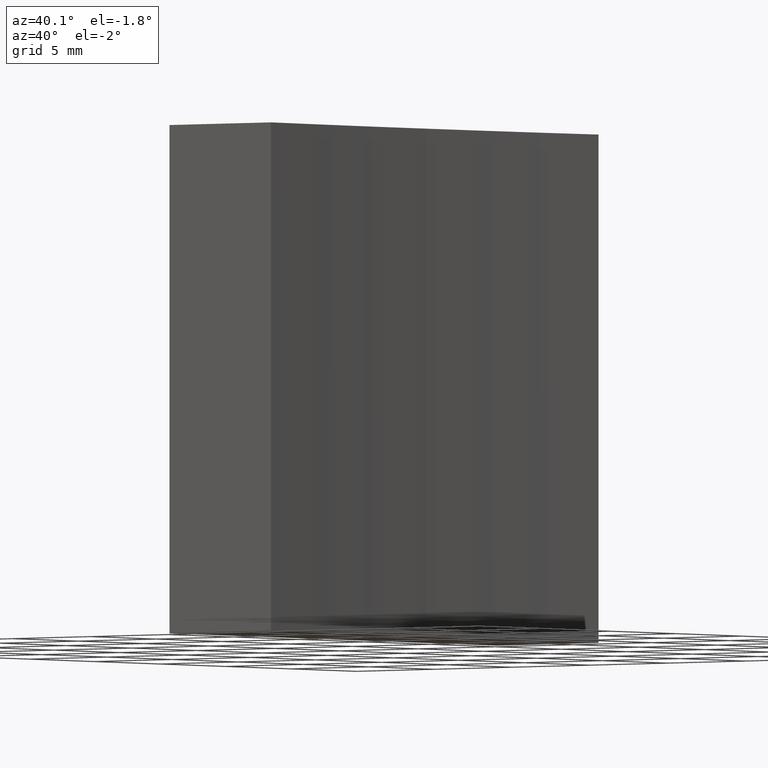
[diagram: clean part render]
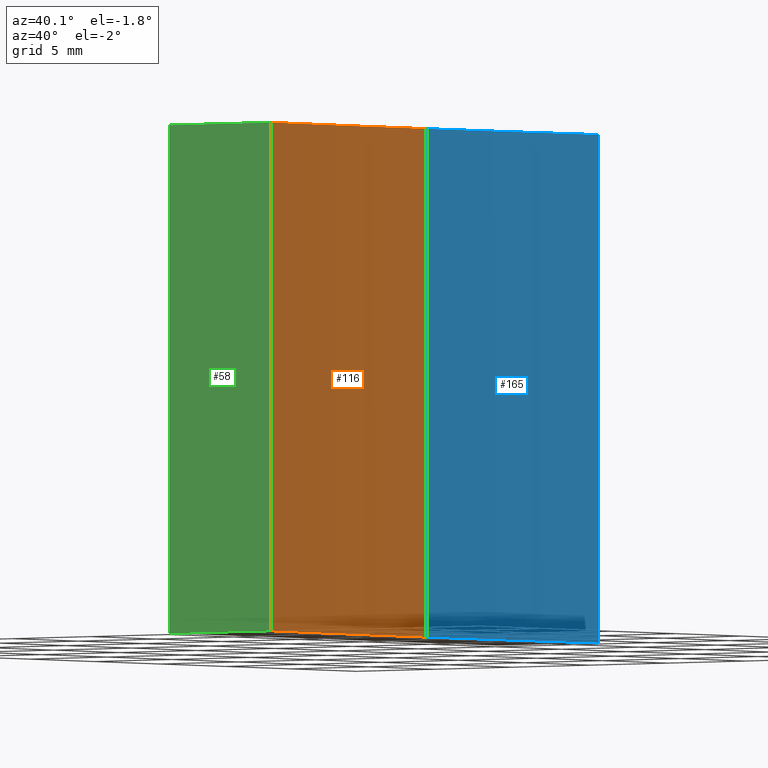
[diagram: same view with three faces highlighted in distinct colors, each labeled with its STEP entity id]
A machine part, auxiliary view with three faces highlighted in distinct colors.
Their STEP definitions:

[orange] entity #116 — the highlighted cylindrical surface (partial cylindrical patch) has radius 150 mm, axis along (-0, -0, -1).
#6 = EDGE_CURVE ( 'NONE', #19, #80, #148, .T. ) ;
#7 = CARTESIAN_POINT ( 'NONE',  ( 121.0926557596387600, 69.37802112337249100, 25.00000000000000000 ) ) ;
#9 = ORIENTED_EDGE ( 'NONE', *, *, #218, .T. ) ;
#19 = VERTEX_POINT ( 'NONE', #204 ) ;
#22 = DIRECTION ( 'NONE',  ( 1.000000000000000000, 0.0000000000000000000, 0.0000000000000000000 ) ) ;
#25 = CARTESIAN_POINT ( 'NONE',  ( 121.6143964708712700, 56.87802112337257700, 25.00000000000000000 ) ) ;
#32 = VECTOR ( 'NONE', #149, 1000.000000000000000 ) ;
#37 = AXIS2_PLACEMENT_3D ( 'NONE', #70, #85, #172 ) ;
#51 = CARTESIAN_POINT ( 'NONE',  ( 121.0926557596387600, 69.37802112337249100, 0.0000000000000000000 ) ) ;
#55 = DIRECTION ( 'NONE',  ( -0.0000000000000000000, -0.0000000000000000000, -1.000000000000000000 ) ) ;
#56 = VECTOR ( 'NONE', #55, 1000.000000000000000 ) ;
#57 = VERTEX_POINT ( 'NONE', #25 ) ;
#66 = DIRECTION ( 'NONE',  ( 1.000000000000000000, 0.0000000000000000000, 0.0000000000000000000 ) ) ;
#68 = FACE_OUTER_BOUND ( 'NONE', #181, .T. ) ;
#70 = CARTESIAN_POINT ( 'NONE',  ( 271.0926557596387700, 69.37802112337249100, 25.00000000000000000 ) ) ;
#72 = EDGE_CURVE ( 'NONE', #57, #230, #180, .T. ) ;
#80 = VERTEX_POINT ( 'NONE', #51 ) ;
#81 = DIRECTION ( 'NONE',  ( -0.0000000000000000000, -0.0000000000000000000, -1.000000000000000000 ) ) ;
#82 = CARTESIAN_POINT ( 'NONE',  ( 271.0926557596387700, 69.37802112337249100, 0.0000000000000000000 ) ) ;
#85 = DIRECTION ( 'NONE',  ( -0.0000000000000000000, -0.0000000000000000000, -1.000000000000000000 ) ) ;
#111 = AXIS2_PLACEMENT_3D ( 'NONE', #127, #189, #66 ) ;
#116 = ADVANCED_FACE ( 'NONE', ( #68 ), #134, .F. ) ;
#127 = CARTESIAN_POINT ( 'NONE',  ( 271.0926557596387700, 69.37802112337249100, 25.00000000000000000 ) ) ;
#133 = EDGE_CURVE ( 'NONE', #230, #80, #191, .T. ) ;
#134 = CYLINDRICAL_SURFACE ( 'NONE', #37, 150.0000000000000000 ) ;
#135 = ORIENTED_EDGE ( 'NONE', *, *, #6, .T. ) ;
#141 = LINE ( 'NONE', #231, #56 ) ;
#148 = CIRCLE ( 'NONE', #201, 149.9999999999999700 ) ;
#149 = DIRECTION ( 'NONE',  ( -0.0000000000000000000, -0.0000000000000000000, -1.000000000000000000 ) ) ;
#159 = ORIENTED_EDGE ( 'NONE', *, *, #72, .F. ) ;
#172 = DIRECTION ( 'NONE',  ( -1.000000000000000000, 0.0000000000000000000, 0.0000000000000000000 ) ) ;
#177 = CARTESIAN_POINT ( 'NONE',  ( 121.0926557596387600, 69.37802112337249100, 25.00000000000000000 ) ) ;
#180 = CIRCLE ( 'NONE', #111, 149.9999999999999700 ) ;
#181 = EDGE_LOOP ( 'NONE', ( #203, #159, #9, #135 ) ) ;
#189 = DIRECTION ( 'NONE',  ( -0.0000000000000000000, -0.0000000000000000000, -1.000000000000000000 ) ) ;
#191 = LINE ( 'NONE', #7, #32 ) ;
#201 = AXIS2_PLACEMENT_3D ( 'NONE', #82, #81, #22 ) ;
#203 = ORIENTED_EDGE ( 'NONE', *, *, #133, .F. ) ;
#204 = CARTESIAN_POINT ( 'NONE',  ( 121.6143964708712700, 56.87802112337257700, 0.0000000000000000000 ) ) ;
#218 = EDGE_CURVE ( 'NONE', #57, #19, #141, .T. ) ;
#230 = VERTEX_POINT ( 'NONE', #177 ) ;
#231 = CARTESIAN_POINT ( 'NONE',  ( 121.6143964708712700, 56.87802112337257700, 25.00000000000000000 ) ) ;

[blue] entity #165 — the highlighted cylindrical surface (partial cylindrical patch) has radius 150 mm, axis along (-0, -0, -1).
#4 = AXIS2_PLACEMENT_3D ( 'NONE', #73, #71, #13 ) ;
#5 = CARTESIAN_POINT ( 'NONE',  ( 271.0926557596387700, 69.37802112337249100, 0.0000000000000000000 ) ) ;
#7 = CARTESIAN_POINT ( 'NONE',  ( 121.0926557596387600, 69.37802112337249100, 25.00000000000000000 ) ) ;
#13 = DIRECTION ( 'NONE',  ( 1.000000000000000000, 0.0000000000000000000, 0.0000000000000000000 ) ) ;
#17 = ORIENTED_EDGE ( 'NONE', *, *, #195, .T. ) ;
#18 = EDGE_CURVE ( 'NONE', #94, #115, #60, .T. ) ;
#20 = CARTESIAN_POINT ( 'NONE',  ( 121.6143964708713000, 81.87802112337246300, 25.00000000000000000 ) ) ;
#27 = CIRCLE ( 'NONE', #4, 149.9999999999999700 ) ;
#32 = VECTOR ( 'NONE', #149, 1000.000000000000000 ) ;
#33 = ORIENTED_EDGE ( 'NONE', *, *, #133, .T. ) ;
#34 = FACE_OUTER_BOUND ( 'NONE', #166, .T. ) ;
#35 = AXIS2_PLACEMENT_3D ( 'NONE', #5, #86, #75 ) ;
#40 = DIRECTION ( 'NONE',  ( -0.0000000000000000000, -0.0000000000000000000, -1.000000000000000000 ) ) ;
#50 = DIRECTION ( 'NONE',  ( -0.0000000000000000000, -0.0000000000000000000, -1.000000000000000000 ) ) ;
#51 = CARTESIAN_POINT ( 'NONE',  ( 121.0926557596387600, 69.37802112337249100, 0.0000000000000000000 ) ) ;
#60 = LINE ( 'NONE', #20, #156 ) ;
#65 = DIRECTION ( 'NONE',  ( -1.000000000000000000, 0.0000000000000000000, 0.0000000000000000000 ) ) ;
#71 = DIRECTION ( 'NONE',  ( -0.0000000000000000000, -0.0000000000000000000, -1.000000000000000000 ) ) ;
#73 = CARTESIAN_POINT ( 'NONE',  ( 271.0926557596387700, 69.37802112337249100, 25.00000000000000000 ) ) ;
#75 = DIRECTION ( 'NONE',  ( 1.000000000000000000, 0.0000000000000000000, 0.0000000000000000000 ) ) ;
#80 = VERTEX_POINT ( 'NONE', #51 ) ;
#86 = DIRECTION ( 'NONE',  ( -0.0000000000000000000, -0.0000000000000000000, -1.000000000000000000 ) ) ;
#94 = VERTEX_POINT ( 'NONE', #208 ) ;
#115 = VERTEX_POINT ( 'NONE', #124 ) ;
#124 = CARTESIAN_POINT ( 'NONE',  ( 121.6143964708713000, 81.87802112337246300, 0.0000000000000000000 ) ) ;
#133 = EDGE_CURVE ( 'NONE', #230, #80, #191, .T. ) ;
#149 = DIRECTION ( 'NONE',  ( -0.0000000000000000000, -0.0000000000000000000, -1.000000000000000000 ) ) ;
#156 = VECTOR ( 'NONE', #40, 1000.000000000000000 ) ;
#165 = ADVANCED_FACE ( 'NONE', ( #34 ), #192, .F. ) ;
#166 = EDGE_LOOP ( 'NONE', ( #214, #33, #17, #178 ) ) ;
#171 = CARTESIAN_POINT ( 'NONE',  ( 271.0926557596387700, 69.37802112337249100, 25.00000000000000000 ) ) ;
#177 = CARTESIAN_POINT ( 'NONE',  ( 121.0926557596387600, 69.37802112337249100, 25.00000000000000000 ) ) ;
#178 = ORIENTED_EDGE ( 'NONE', *, *, #18, .F. ) ;
#186 = CIRCLE ( 'NONE', #35, 149.9999999999999700 ) ;
#191 = LINE ( 'NONE', #7, #32 ) ;
#192 = CYLINDRICAL_SURFACE ( 'NONE', #227, 150.0000000000000000 ) ;
#195 = EDGE_CURVE ( 'NONE', #80, #115, #186, .T. ) ;
#208 = CARTESIAN_POINT ( 'NONE',  ( 121.6143964708713000, 81.87802112337246300, 25.00000000000000000 ) ) ;
#210 = EDGE_CURVE ( 'NONE', #230, #94, #27, .T. ) ;
#214 = ORIENTED_EDGE ( 'NONE', *, *, #210, .F. ) ;
#227 = AXIS2_PLACEMENT_3D ( 'NONE', #171, #50, #65 ) ;
#230 = VERTEX_POINT ( 'NONE', #177 ) ;

[green] entity #58 — the highlighted planar face has unit normal (-0, 1, 0).
#3 = FACE_OUTER_BOUND ( 'NONE', #183, .T. ) ;
#14 = LINE ( 'NONE', #182, #114 ) ;
#19 = VERTEX_POINT ( 'NONE', #204 ) ;
#21 = DIRECTION ( 'NONE',  ( 1.000000000000000000, 1.063963437378483000E-014, 0.0000000000000000000 ) ) ;
#25 = CARTESIAN_POINT ( 'NONE',  ( 121.6143964708712700, 56.87802112337257700, 25.00000000000000000 ) ) ;
#31 = VERTEX_POINT ( 'NONE', #235 ) ;
#44 = EDGE_CURVE ( 'NONE', #123, #57, #158, .T. ) ;
#45 = PLANE ( 'NONE',  #234 ) ;
#49 = EDGE_CURVE ( 'NONE', #123, #31, #14, .T. ) ;
#54 = ORIENTED_EDGE ( 'NONE', *, *, #49, .T. ) ;
#55 = DIRECTION ( 'NONE',  ( -0.0000000000000000000, -0.0000000000000000000, -1.000000000000000000 ) ) ;
#56 = VECTOR ( 'NONE', #55, 1000.000000000000000 ) ;
#57 = VERTEX_POINT ( 'NONE', #25 ) ;
#58 = ADVANCED_FACE ( 'NONE', ( #3 ), #45, .F. ) ;
#62 = EDGE_CURVE ( 'NONE', #31, #19, #100, .T. ) ;
#67 = DIRECTION ( 'NONE',  ( -1.000000000000000000, -1.063963437378483000E-014, 0.0000000000000000000 ) ) ;
#90 = VECTOR ( 'NONE', #108, 1000.000000000000000 ) ;
#98 = DIRECTION ( 'NONE',  ( -0.0000000000000000000, -0.0000000000000000000, -1.000000000000000000 ) ) ;
#100 = LINE ( 'NONE', #221, #90 ) ;
#108 = DIRECTION ( 'NONE',  ( 1.000000000000000000, 1.063963437378483000E-014, 0.0000000000000000000 ) ) ;
#114 = VECTOR ( 'NONE', #98, 1000.000000000000000 ) ;
#123 = VERTEX_POINT ( 'NONE', #224 ) ;
#141 = LINE ( 'NONE', #231, #56 ) ;
#143 = CARTESIAN_POINT ( 'NONE',  ( 115.0926555349195200, 56.87802112337244200, 25.00000000000000000 ) ) ;
#147 = DIRECTION ( 'NONE',  ( -1.063963437378483000E-014, 1.000000000000000000, 0.0000000000000000000 ) ) ;
#158 = LINE ( 'NONE', #143, #229 ) ;
#182 = CARTESIAN_POINT ( 'NONE',  ( 115.0926555349195200, 56.87802112337244200, 25.00000000000000000 ) ) ;
#183 = EDGE_LOOP ( 'NONE', ( #187, #238, #220, #54 ) ) ;
#187 = ORIENTED_EDGE ( 'NONE', *, *, #62, .T. ) ;
#188 = CARTESIAN_POINT ( 'NONE',  ( 115.0926555349195200, 56.87802112337244200, 25.00000000000000000 ) ) ;
#204 = CARTESIAN_POINT ( 'NONE',  ( 121.6143964708712700, 56.87802112337257700, 0.0000000000000000000 ) ) ;
#218 = EDGE_CURVE ( 'NONE', #57, #19, #141, .T. ) ;
#220 = ORIENTED_EDGE ( 'NONE', *, *, #44, .F. ) ;
#221 = CARTESIAN_POINT ( 'NONE',  ( 115.0926555349195200, 56.87802112337244200, 0.0000000000000000000 ) ) ;
#224 = CARTESIAN_POINT ( 'NONE',  ( 115.0926555349195200, 56.87802112337244200, 25.00000000000000000 ) ) ;
#229 = VECTOR ( 'NONE', #21, 1000.000000000000000 ) ;
#231 = CARTESIAN_POINT ( 'NONE',  ( 121.6143964708712700, 56.87802112337257700, 25.00000000000000000 ) ) ;
#234 = AXIS2_PLACEMENT_3D ( 'NONE', #188, #147, #67 ) ;
#235 = CARTESIAN_POINT ( 'NONE',  ( 115.0926555349195200, 56.87802112337244200, 0.0000000000000000000 ) ) ;
#238 = ORIENTED_EDGE ( 'NONE', *, *, #218, .F. ) ;